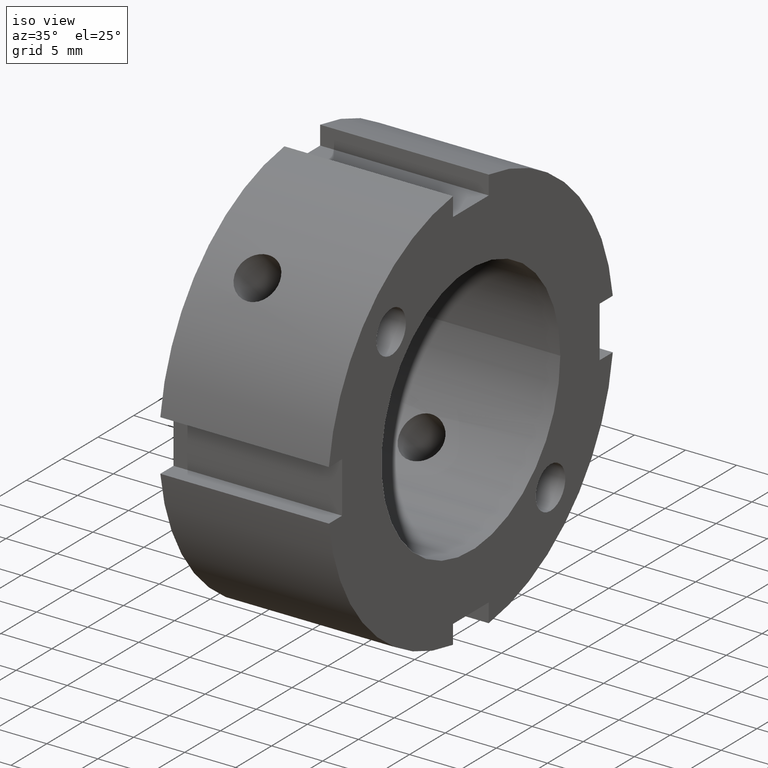
[diagram: clean part render]
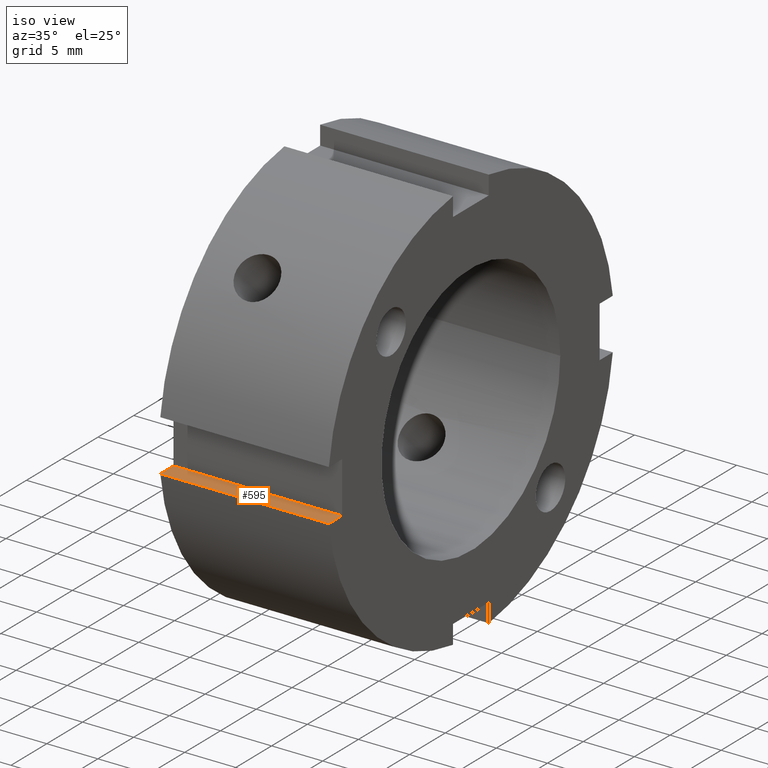
[diagram: same view with one face highlighted and labeled with its STEP entity id]
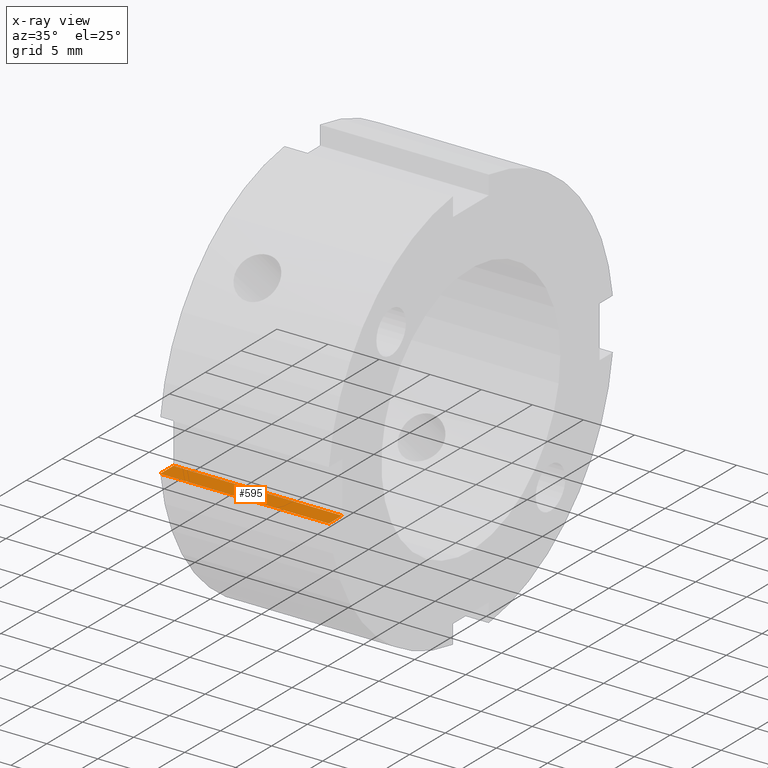
[diagram: x-ray of the same camera — body ghosted, the highlighted face saturated]
A machine part, iso view. The second image highlights one B-rep face of the part: STEP entity #595.
The next image is the same camera in x-ray: the body ghosted, the highlighted face saturated — about 0% of this face is hidden behind the body in this view.
In plain terms, the highlighted planar face has unit normal (0, 0, -1).
Its self-contained STEP definition (entity closure, byte-faithful):
#556=CARTESIAN_POINT('',(16.999999999999996,-20.0,-2.499999999999997));
#557=DIRECTION('',(0.0,0.0,-1.0));
#558=DIRECTION('',(1.0,0.0,0.0));
#559=AXIS2_PLACEMENT_3D('',#556,#557,#558);
#560=PLANE('',#559);
#561=CARTESIAN_POINT('',(0.499999999999998,-19.843134832984425,-2.499999999999996));
#562=VERTEX_POINT('',#561);
#563=CARTESIAN_POINT('',(0.499999999999998,-18.0,-2.499999999999997));
#564=VERTEX_POINT('',#563);
#565=CARTESIAN_POINT('',(0.499999999999998,-19.843134832984425,-2.499999999999997));
#566=DIRECTION('',(0.0,1.0,0.0));
#567=VECTOR('',#566,1.843134832984429);
#568=LINE('',#565,#567);
#569=EDGE_CURVE('',#562,#564,#568,.T.);
#570=ORIENTED_EDGE('',*,*,#569,.F.);
#571=CARTESIAN_POINT('',(16.999999999999996,-19.843134832984425,-2.499999999999996));
#572=VERTEX_POINT('',#571);
#573=CARTESIAN_POINT('',(17.0,-19.843134832984429,-2.499999999999997));
#574=DIRECTION('',(-1.0,0.0,0.0));
#575=VECTOR('',#574,16.5);
#576=LINE('',#573,#575);
#577=EDGE_CURVE('',#572,#562,#576,.T.);
#578=ORIENTED_EDGE('',*,*,#577,.F.);
#579=CARTESIAN_POINT('',(16.999999999999996,-18.0,-2.499999999999997));
#580=VERTEX_POINT('',#579);
#581=CARTESIAN_POINT('',(16.999999999999996,-18.0,-2.499999999999998));
#582=DIRECTION('',(0.0,-1.0,0.0));
#583=VECTOR('',#582,1.843134832984426);
#584=LINE('',#581,#583);
#585=EDGE_CURVE('',#580,#572,#584,.T.);
#586=ORIENTED_EDGE('',*,*,#585,.F.);
#587=CARTESIAN_POINT('',(16.999999999999996,-18.0,-2.499999999999997));
#588=DIRECTION('',(-1.0,0.0,0.0));
#589=VECTOR('',#588,16.5);
#590=LINE('',#587,#589);
#591=EDGE_CURVE('',#580,#564,#590,.T.);
#592=ORIENTED_EDGE('',*,*,#591,.T.);
#593=EDGE_LOOP('',(#570,#578,#586,#592));
#594=FACE_OUTER_BOUND('',#593,.T.);
#595=ADVANCED_FACE('',(#594),#560,.F.);